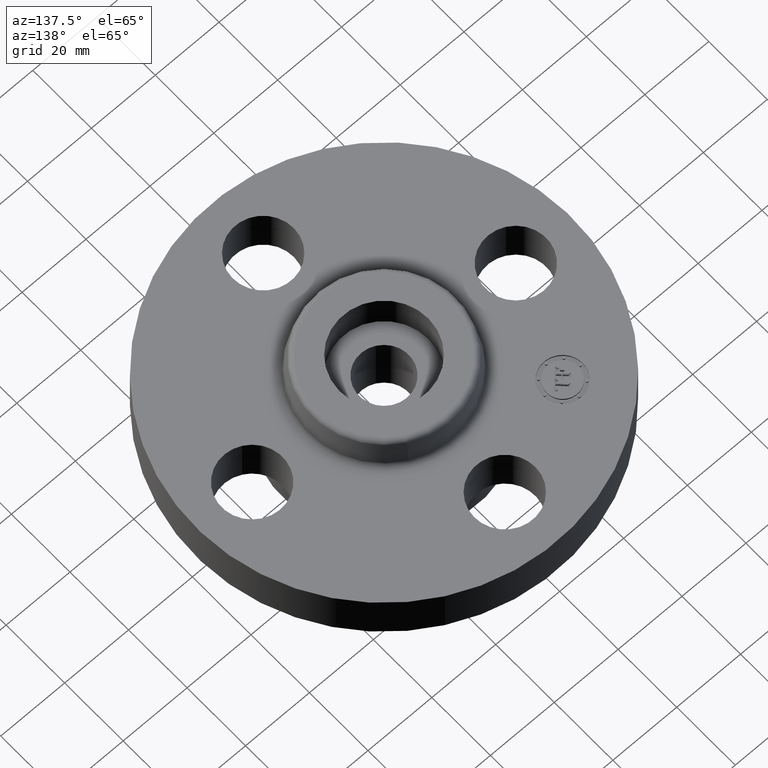
[diagram: clean part render]
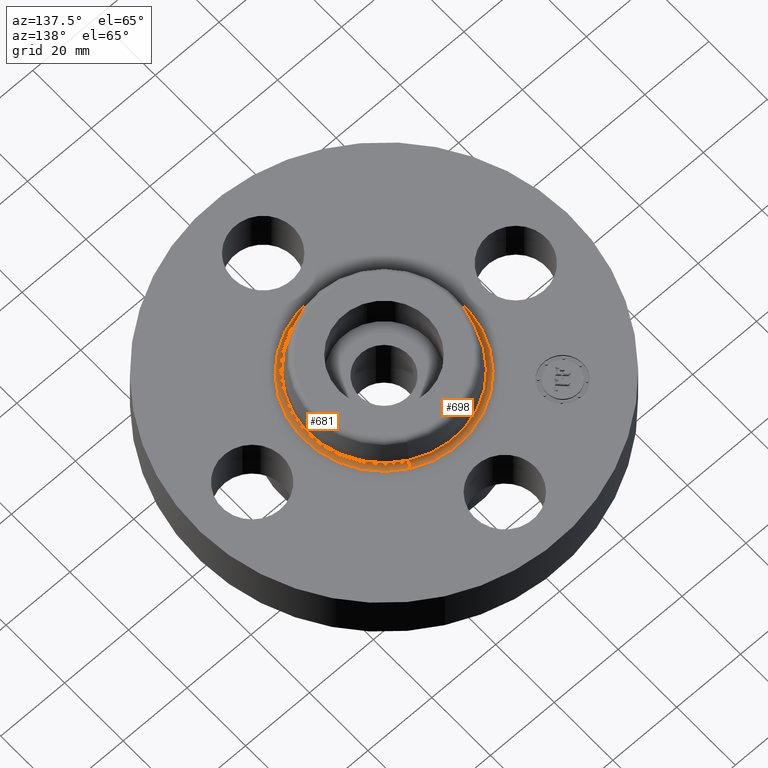
[diagram: same view with one multi-face feature highlighted, each face labeled with its STEP entity id]
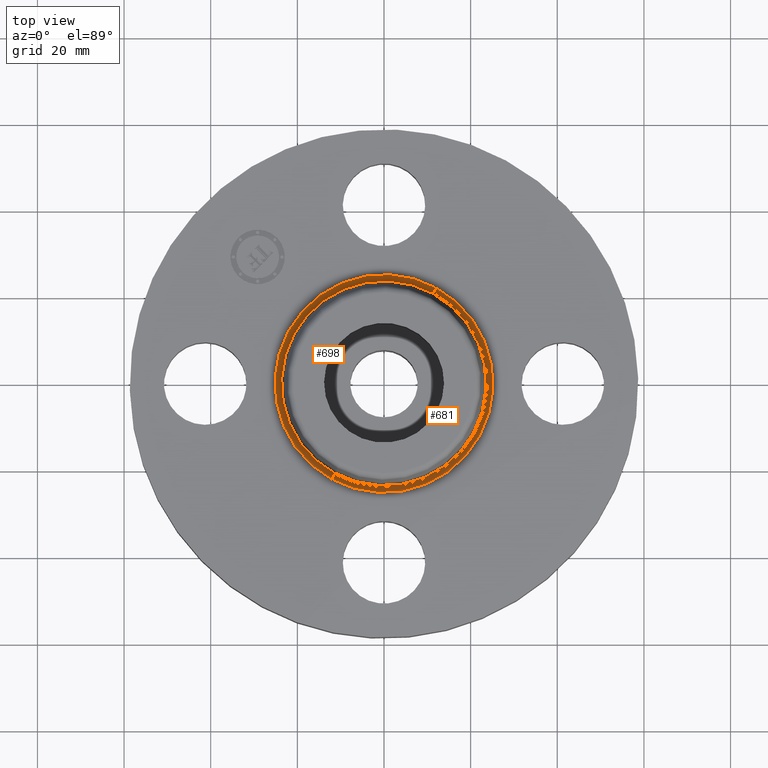
[diagram: same view with one multi-face feature highlighted, each face labeled with its STEP entity id]
A machine part, auxiliary view. The highlighted faces form ONE feature: a constant-radius fillet chain: 2 tangent blend faces with common blend radius 1.524 mm. The faces share edges in the B-rep.
A second angle (top view) of the same feature is appended — it is thin or edge-on in the first view.
Their STEP definitions:
[1] entity #681 (Torus):
#645=AXIS2_PLACEMENT_3D('Torus Axis2P3D',#642,#643,#644) ;
#649=AXIS2_PLACEMENT_3D('Circle Axis2P3D',#647,#648,$) ;
#658=AXIS2_PLACEMENT_3D('Circle Axis2P3D',#656,#657,$) ;
#665=AXIS2_PLACEMENT_3D('Circle Axis2P3D',#663,#664,$) ;
#672=AXIS2_PLACEMENT_3D('Circle Axis2P3D',#670,#671,$) ;
#642=CARTESIAN_POINT('Axis2P3D Location',(0.,0.,0.680000000003)) ;
#647=CARTESIAN_POINT('Axis2P3D Location',(0.,0.,0.620000000002)) ;
#651=CARTESIAN_POINT('Vertex',(0.474797153847,0.869110360421,0.620000000002)) ;
#653=CARTESIAN_POINT('Vertex',(-0.474797153847,-0.869110360421,0.620000000002)) ;
#656=CARTESIAN_POINT('Axis2P3D Location',(0.474797153847,0.869110360421,0.680000000003)) ;
#660=CARTESIAN_POINT('Vertex',(0.446468634602,0.817255353769,0.669581109343)) ;
#663=CARTESIAN_POINT('Axis2P3D Location',(0.,0.,0.669581109343)) ;
#667=CARTESIAN_POINT('Vertex',(-0.446468634602,-0.817255353769,0.669581109343)) ;
#670=CARTESIAN_POINT('Axis2P3D Location',(-0.474797153847,-0.869110360421,0.680000000003)) ;
#643=DIRECTION('Axis2P3D Direction',(0.,0.,-0.0393700787402)) ;
#644=DIRECTION('Axis2P3D XDirection',(-0.0188750212049,-0.0345504945626,0.)) ;
#648=DIRECTION('Axis2P3D Direction',(0.,0.,-0.0393700787402)) ;
#657=DIRECTION('Axis2P3D Direction',(-0.0345504945626,0.0188750212049,0.)) ;
#664=DIRECTION('Axis2P3D Direction',(0.,0.,-0.0393700787402)) ;
#671=DIRECTION('Axis2P3D Direction',(0.0345504945626,-0.0188750212049,0.)) ;
#676=ORIENTED_EDGE('',*,*,#655,.F.) ;
#677=ORIENTED_EDGE('',*,*,#662,.T.) ;
#678=ORIENTED_EDGE('',*,*,#669,.T.) ;
#679=ORIENTED_EDGE('',*,*,#674,.F.) ;
#681=ADVANCED_FACE('PartBody',(#680),#646,.F.) ;
#650=CIRCLE('generated circle',#649,0.990345977875) ;
#659=CIRCLE('generated circle',#658,0.0600000000002) ;
#666=CIRCLE('generated circle',#665,0.931257512694) ;
#673=CIRCLE('generated circle',#672,0.0600000000002) ;
#646=TOROIDAL_SURFACE('homeo Torus',#645,0.990345977875,0.0600000000002) ;
#655=EDGE_CURVE('',#652,#654,#650,.T.) ;
#662=EDGE_CURVE('',#652,#661,#659,.T.) ;
#669=EDGE_CURVE('',#661,#668,#666,.T.) ;
#674=EDGE_CURVE('',#654,#668,#673,.T.) ;
#675=EDGE_LOOP('',(#676,#677,#678,#679)) ;
#680=FACE_OUTER_BOUND('',#675,.T.) ;
#652=VERTEX_POINT('',#651) ;
#654=VERTEX_POINT('',#653) ;
#661=VERTEX_POINT('',#660) ;
#668=VERTEX_POINT('',#667) ;
[2] entity #698 (Torus):
#645=AXIS2_PLACEMENT_3D('Torus Axis2P3D',#642,#643,#644) ;
#658=AXIS2_PLACEMENT_3D('Circle Axis2P3D',#656,#657,$) ;
#672=AXIS2_PLACEMENT_3D('Circle Axis2P3D',#670,#671,$) ;
#684=AXIS2_PLACEMENT_3D('Circle Axis2P3D',#682,#683,$) ;
#689=AXIS2_PLACEMENT_3D('Circle Axis2P3D',#687,#688,$) ;
#642=CARTESIAN_POINT('Axis2P3D Location',(0.,0.,0.680000000003)) ;
#651=CARTESIAN_POINT('Vertex',(0.474797153847,0.869110360421,0.620000000002)) ;
#653=CARTESIAN_POINT('Vertex',(-0.474797153847,-0.869110360421,0.620000000002)) ;
#656=CARTESIAN_POINT('Axis2P3D Location',(0.474797153847,0.869110360421,0.680000000003)) ;
#660=CARTESIAN_POINT('Vertex',(0.446468634602,0.817255353769,0.669581109343)) ;
#667=CARTESIAN_POINT('Vertex',(-0.446468634602,-0.817255353769,0.669581109343)) ;
#670=CARTESIAN_POINT('Axis2P3D Location',(-0.474797153847,-0.869110360421,0.680000000003)) ;
#682=CARTESIAN_POINT('Axis2P3D Location',(0.,0.,0.620000000002)) ;
#687=CARTESIAN_POINT('Axis2P3D Location',(0.,0.,0.669581109343)) ;
#643=DIRECTION('Axis2P3D Direction',(0.,0.,-0.0393700787402)) ;
#644=DIRECTION('Axis2P3D XDirection',(-0.0188750212049,-0.0345504945626,0.)) ;
#657=DIRECTION('Axis2P3D Direction',(-0.0345504945626,0.0188750212049,0.)) ;
#671=DIRECTION('Axis2P3D Direction',(0.0345504945626,-0.0188750212049,0.)) ;
#683=DIRECTION('Axis2P3D Direction',(0.,0.,-0.0393700787402)) ;
#688=DIRECTION('Axis2P3D Direction',(0.,0.,-0.0393700787402)) ;
#693=ORIENTED_EDGE('',*,*,#686,.F.) ;
#694=ORIENTED_EDGE('',*,*,#674,.T.) ;
#695=ORIENTED_EDGE('',*,*,#691,.T.) ;
#696=ORIENTED_EDGE('',*,*,#662,.F.) ;
#698=ADVANCED_FACE('PartBody',(#697),#646,.F.) ;
#659=CIRCLE('generated circle',#658,0.0600000000002) ;
#673=CIRCLE('generated circle',#672,0.0600000000002) ;
#685=CIRCLE('generated circle',#684,0.990345977875) ;
#690=CIRCLE('generated circle',#689,0.931257512694) ;
#646=TOROIDAL_SURFACE('homeo Torus',#645,0.990345977875,0.0600000000002) ;
#662=EDGE_CURVE('',#652,#661,#659,.T.) ;
#674=EDGE_CURVE('',#654,#668,#673,.T.) ;
#686=EDGE_CURVE('',#654,#652,#685,.T.) ;
#691=EDGE_CURVE('',#668,#661,#690,.T.) ;
#692=EDGE_LOOP('',(#693,#694,#695,#696)) ;
#697=FACE_OUTER_BOUND('',#692,.T.) ;
#652=VERTEX_POINT('',#651) ;
#654=VERTEX_POINT('',#653) ;
#661=VERTEX_POINT('',#660) ;
#668=VERTEX_POINT('',#667) ;